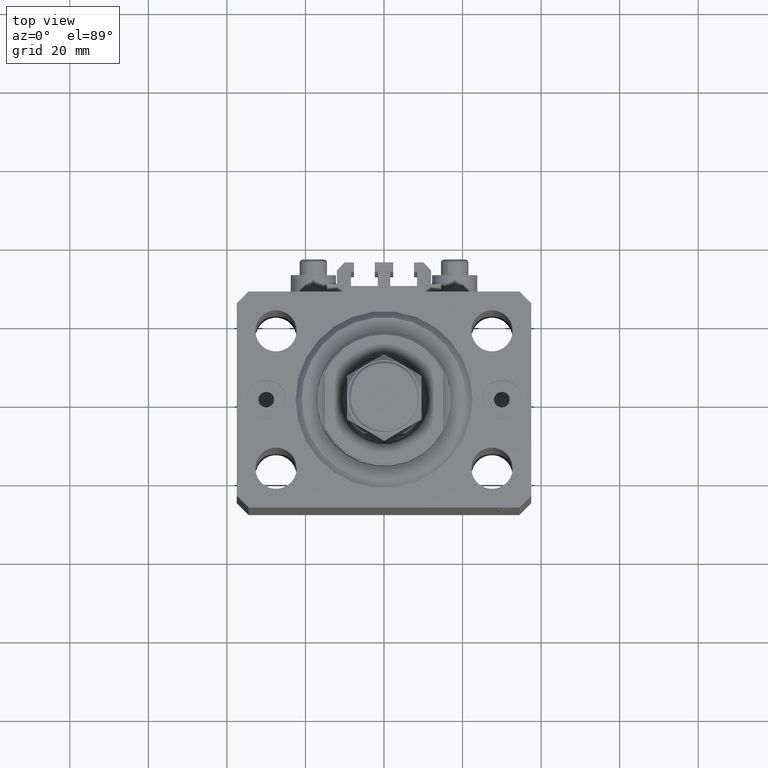
[diagram: clean part render]
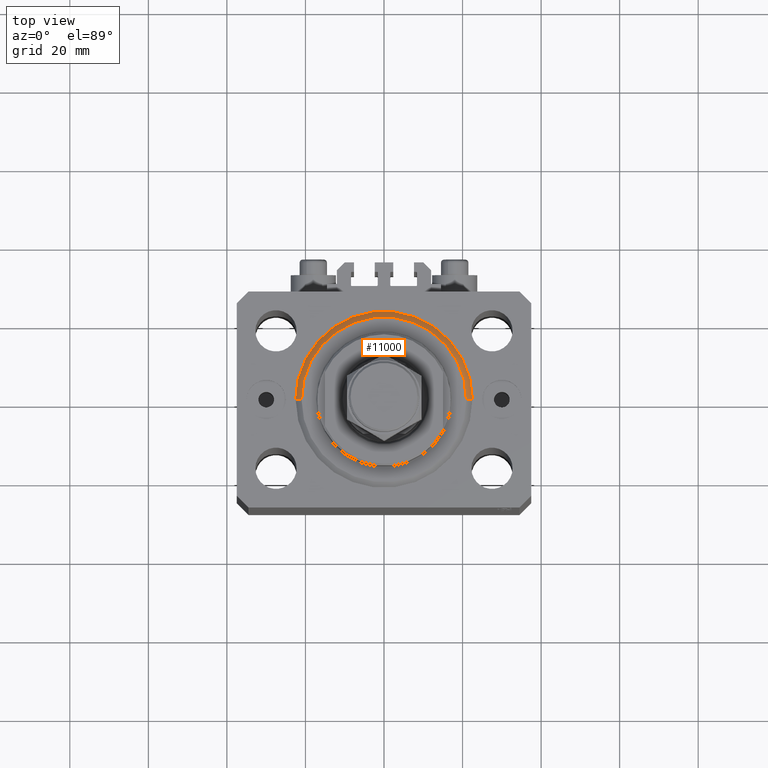
[diagram: same view with one face highlighted and labeled with its STEP entity id]
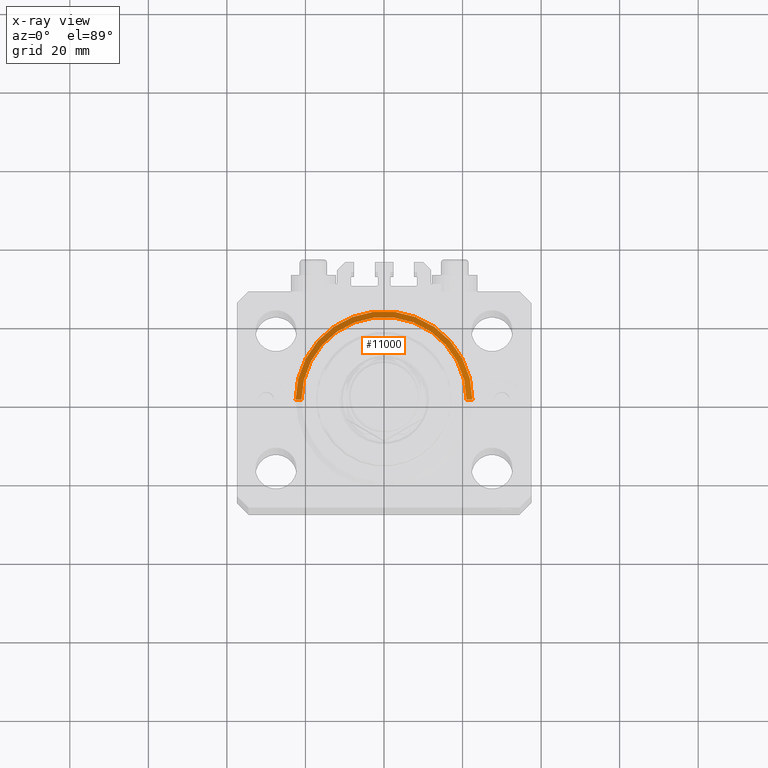
[diagram: x-ray of the same camera — body ghosted, the highlighted face saturated]
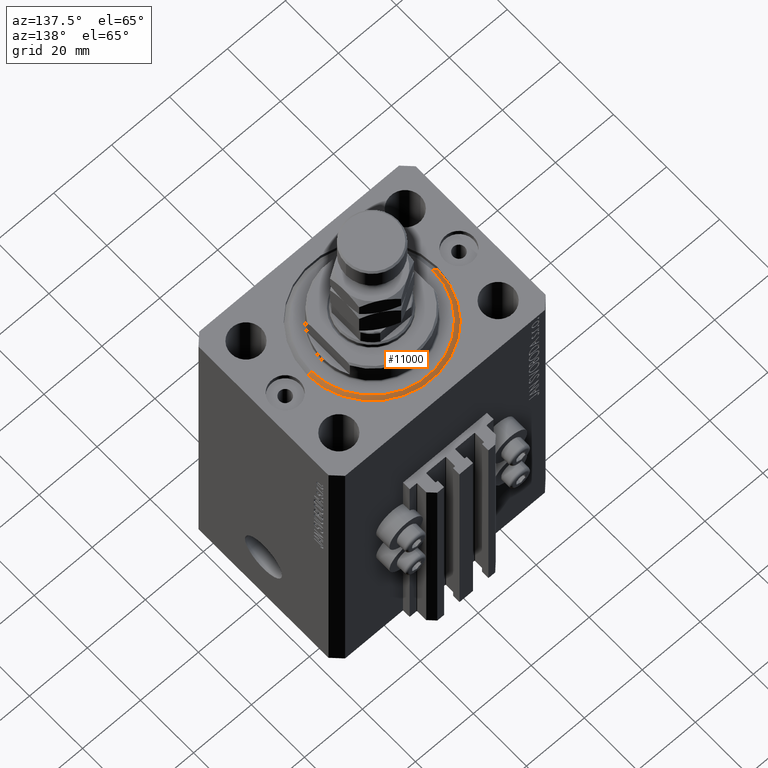
[diagram: same view with one face highlighted and labeled with its STEP entity id]
A machine part, top view. The second image highlights one B-rep face of the part: STEP entity #11000.
The next image is the same camera in x-ray: the body ghosted, the highlighted face saturated — about 0% of this face is hidden behind the body in this view.
A second angle (auxiliary view) of the same face is appended — the face is thin or edge-on in the first view.
In plain terms, the highlighted conical surface has half-angle 45 deg.
Its self-contained STEP definition (entity closure, byte-faithful):
#1736 = CARTESIAN_POINT ( 'NONE',  ( 20.99999999999998934, 0.000000000000000000, 0.000000000000000000 ) ) ;
#2899 = DIRECTION ( 'NONE',  ( -0.000000000000000000, -0.000000000000000000, 1.000000000000000000 ) ) ;
#3966 = CARTESIAN_POINT ( 'NONE',  ( 22.50000000000000355, 0.000000000000000000, 1.500000000000001332 ) ) ;
#4210 = LINE ( 'NONE', #3966, #7622 ) ;
#4337 = ORIENTED_EDGE ( 'NONE', *, *, #47216, .F. ) ;
#5006 = CIRCLE ( 'NONE', #46054, 22.50000000000000355 ) ;
#6322 = CIRCLE ( 'NONE', #44236, 20.99999999999998934 ) ;
#6398 = CARTESIAN_POINT ( 'NONE',  ( -20.99999999999998934, 2.663606788145492628E-15, 0.000000000000000000 ) ) ;
#6495 = CARTESIAN_POINT ( 'NONE',  ( 0.000000000000000000, 0.000000000000000000, 0.000000000000000000 ) ) ;
#6773 = AXIS2_PLACEMENT_3D ( 'NONE', #21938, #2899, #29840 ) ;
#7080 = EDGE_CURVE ( 'NONE', #16134, #14827, #27185, .T. ) ;
#7622 = VECTOR ( 'NONE', #7679, 1000.000000000000114 ) ;
#7679 = DIRECTION ( 'NONE',  ( 0.7071067811865500152, 0.000000000000000000, 0.7071067811865451302 ) ) ;
#10693 = ORIENTED_EDGE ( 'NONE', *, *, #7080, .T. ) ;
#11000 = ADVANCED_FACE ( 'NONE', ( #29594 ), #32047, .T. ) ;
#11478 = DIRECTION ( 'NONE',  ( -0.000000000000000000, -0.000000000000000000, 1.000000000000000000 ) ) ;
#14827 = VERTEX_POINT ( 'NONE', #19587 ) ;
#16134 = VERTEX_POINT ( 'NONE', #6398 ) ;
#19270 = VECTOR ( 'NONE', #31630, 1000.000000000000114 ) ;
#19587 = CARTESIAN_POINT ( 'NONE',  ( -22.50000000000000355, 0.000000000000000000, 1.500000000000001332 ) ) ;
#19822 = EDGE_LOOP ( 'NONE', ( #23779, #10693, #44347, #4337 ) ) ;
#21938 = CARTESIAN_POINT ( 'NONE',  ( 0.000000000000000000, 0.000000000000000000, 1.500000000000001332 ) ) ;
#23779 = ORIENTED_EDGE ( 'NONE', *, *, #27932, .F. ) ;
#26559 = DIRECTION ( 'NONE',  ( 1.000000000000000000, 0.000000000000000000, 0.000000000000000000 ) ) ;
#26754 = CARTESIAN_POINT ( 'NONE',  ( 22.50000000000000355, 2.755455298081545172E-15, 1.500000000000001332 ) ) ;
#27185 = LINE ( 'NONE', #42276, #19270 ) ;
#27932 = EDGE_CURVE ( 'NONE', #16134, #47594, #6322, .T. ) ;
#29594 = FACE_OUTER_BOUND ( 'NONE', #19822, .T. ) ;
#29840 = DIRECTION ( 'NONE',  ( 1.000000000000000000, 0.000000000000000000, 0.000000000000000000 ) ) ;
#30258 = CARTESIAN_POINT ( 'NONE',  ( 0.000000000000000000, 0.000000000000000000, 1.500000000000001332 ) ) ;
#31630 = DIRECTION ( 'NONE',  ( -0.7071067811865500152, 8.659560562354963673E-17, 0.7071067811865451302 ) ) ;
#32047 = CONICAL_SURFACE ( 'NONE', #6773, 22.50000000000000355, 0.7853981633974517207 ) ;
#36345 = EDGE_CURVE ( 'NONE', #44693, #14827, #5006, .T. ) ;
#36646 = DIRECTION ( 'NONE',  ( 1.000000000000000000, 0.000000000000000000, 0.000000000000000000 ) ) ;
#42276 = CARTESIAN_POINT ( 'NONE',  ( -22.50000000000000355, 2.755455298081545172E-15, 1.500000000000001332 ) ) ;
#44236 = AXIS2_PLACEMENT_3D ( 'NONE', #6495, #44567, #36646 ) ;
#44347 = ORIENTED_EDGE ( 'NONE', *, *, #36345, .F. ) ;
#44567 = DIRECTION ( 'NONE',  ( -0.000000000000000000, -0.000000000000000000, -1.000000000000000000 ) ) ;
#44693 = VERTEX_POINT ( 'NONE', #26754 ) ;
#46054 = AXIS2_PLACEMENT_3D ( 'NONE', #30258, #11478, #26559 ) ;
#47216 = EDGE_CURVE ( 'NONE', #47594, #44693, #4210, .T. ) ;
#47594 = VERTEX_POINT ( 'NONE', #1736 ) ;